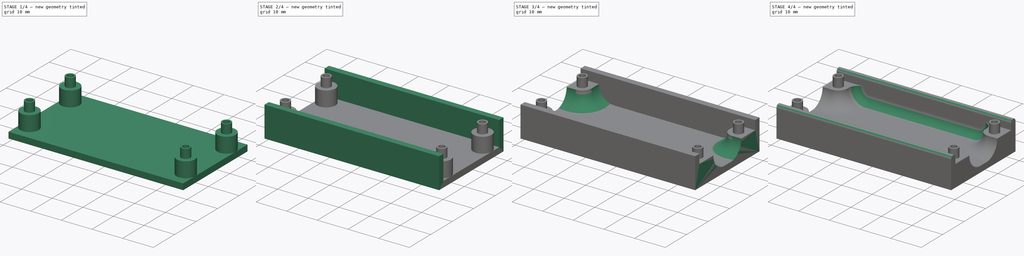
[diagram: build sequence overview — one tinted view per stage of 4, left to right]
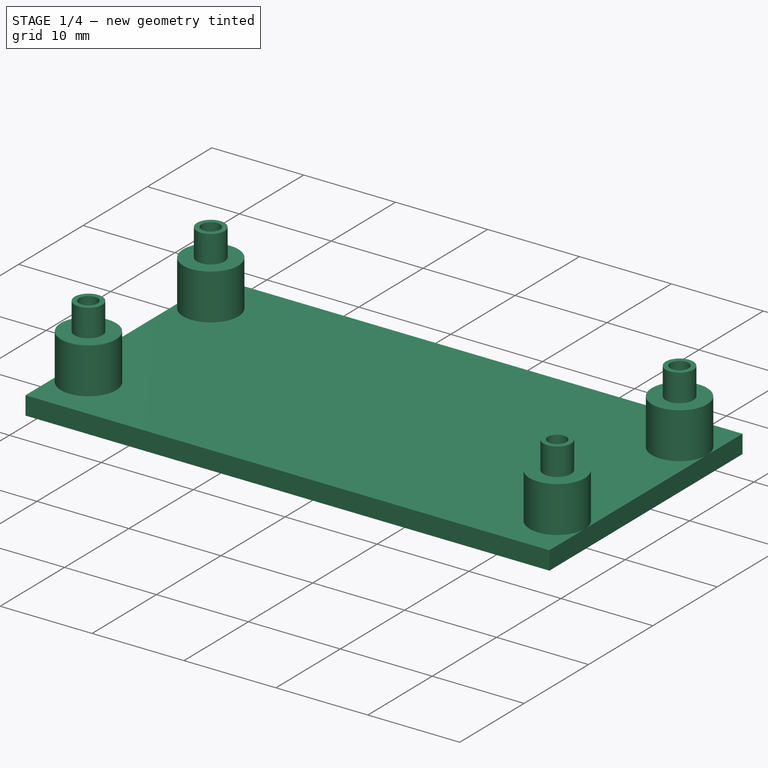
[diagram: stage 1 of 4 — iso view after this stage's code; geometry added in this stage tinted green]
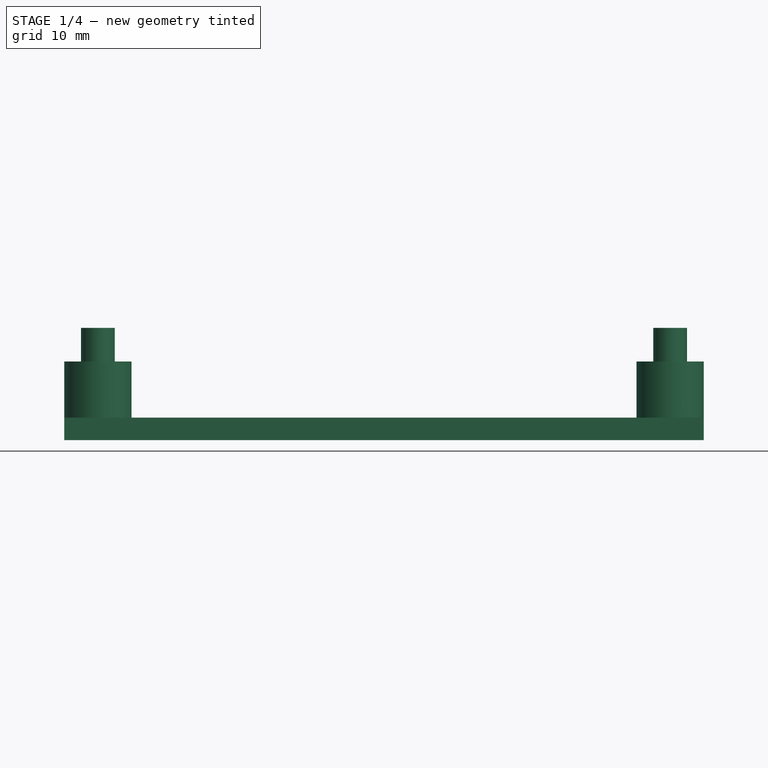
[diagram: stage 1 of 4 — front view after this stage's code; geometry added in this stage tinted green]
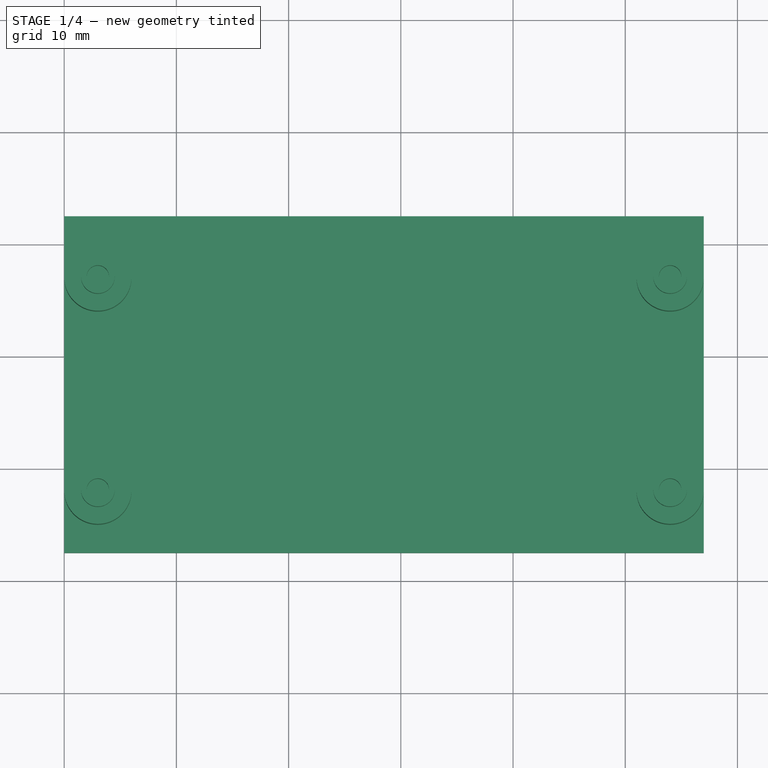
[diagram: stage 1 of 4 — top view after this stage's code; geometry added in this stage tinted green]
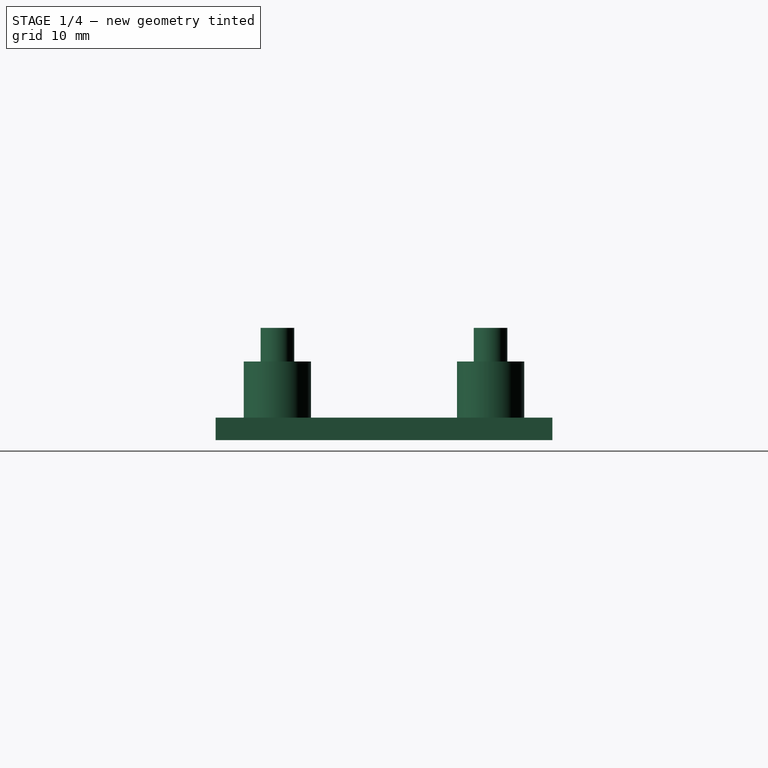
[diagram: stage 1 of 4 — right view after this stage's code; geometry added in this stage tinted green]
FCSTD DOCUMENT  (FreeCAD 1.0RUnknown)
Label: usbtin_bed
License: All rights reserved
LicenseURL: http://en.wikipedia.org/wiki/All_rights_reserved
objects: Sketcher::SketchObject×8, PartDesign::Pad×6, PartDesign::Plane×5, PartDesign::Line×5, PartDesign::Mirrored×3, PartDesign::Revolution×1, PartDesign::PolarPattern×1, PartDesign::Fillet×1, PartDesign::Pocket×1, PartDesign::Body×1
note: 62 computed .brp shape members not serialized (recipe doc carries the construction recipe); baked Part::Feature solids carry a one-line shape summary decoded from their .brp

FEATURE [Sketcher::SketchObject] Sketch  label="board footprint"
  ArcFitTolerance = 1e-06
  AttachmentSupport = -> [XY_Plane]
  FullyConstrained = true
  MakeInternals = false
  MapMode = 5
  sketch-geometry (8):
    g0: LineSegment StartX=0 StartY=0 StartZ=0 EndX=0 EndY=-25 EndZ=0
    g1: LineSegment StartX=0 StartY=-25 StartZ=0 EndX=57 EndY=-25 EndZ=0
    g2: LineSegment StartX=57 StartY=-25 StartZ=0 EndX=57 EndY=0 EndZ=0
    g3: LineSegment StartX=57 StartY=0 StartZ=0 EndX=0 EndY=0 EndZ=0
    g4: Circle CenterX=3 CenterY=-3 CenterZ=0 NormalX=0 NormalY=0 NormalZ=1 AngleXU=0 Radius=1.6
    g5: Circle CenterX=54 CenterY=-3 CenterZ=0 NormalX=0 NormalY=0 NormalZ=1 AngleXU=0 Radius=1.6
    g6: Circle CenterX=54 CenterY=-22 CenterZ=0 NormalX=0 NormalY=0 NormalZ=1 AngleXU=0 Radius=1.6
    g7: Circle CenterX=3 CenterY=-22 CenterZ=0 NormalX=0 NormalY=0 NormalZ=1 AngleXU=0 Radius=1.6
  constraints (23):
    c: Coincident(g0,g1)
    c: Coincident(g1,g2)
    c: Coincident(g2,g3)
    c: Coincident(g3,g0)
    c: Vertical(g0)
    c: Vertical(g2)
    c: Horizontal(g1)
    c: Horizontal(g3)
    c: Distance(g0,g2) = 57
    c: Distance(g1,g3) = 25
    c: Coincident(g0,g-1)
    c: Diameter(g4) = 3.2
    c: Diameter(g5) = 3.2
    c: Diameter(g6) = 3.2
    c: Diameter(g7) = 3.2
    c: DistanceY(g4) = -3
    c: DistanceX(g4) = 3
    c: DistanceY(g5,g2) = 3
    c: DistanceX(g5,g2) = 3
    c: DistanceY(g1,g6) = 3
    c: DistanceX(g6,g1) = 3
    c: DistanceY(g0,g7) = 3
    c: DistanceX(g0,g7) = 3
FEATURE [Sketcher::SketchObject] Sketch001
  ArcFitTolerance = 1e-06
  AttachmentSupport = -> [XY_Plane]
  ExternalGeometry = -> [Sketch]
  FullyConstrained = true
  MakeInternals = false
  MapMode = 5
  sketch-geometry (5):
    g0: LineSegment StartX=0 StartY=2.5 StartZ=0 EndX=0 EndY=-27.5 EndZ=0
    g1: LineSegment StartX=0 StartY=-27.5 StartZ=0 EndX=57 EndY=-27.5 EndZ=0
    g2: LineSegment StartX=57 StartY=-27.5 StartZ=0 EndX=57 EndY=2.5 EndZ=0
    g3: LineSegment StartX=57 StartY=2.5 StartZ=0 EndX=0 EndY=2.5 EndZ=0
    g4: GeomPoint [constr] X=0 Y=-12.5 Z=0
  constraints (12):
    c: Coincident(g0,g1)
    c: Coincident(g1,g2)
    c: Coincident(g2,g3)
    c: Coincident(g3,g0)
    c: Vertical(g0)
    c: Vertical(g2)
    c: Horizontal(g1)
    c: Horizontal(g3)
    c: Vertical(g2,g-4)
    c: DistanceY(g0) = 2.5
    c: Symmetric(g-1,g-3,g4)
    c: Symmetric(g0,g0,g4)
FEATURE [PartDesign::Pad] Pad  label="base"
  Direction = (0,0,1)
  Length = 2
  Length2 = 10
  Profile = -> Sketch001
  ReferenceAxis = -> Sketch001 [N_Axis]
  Refine = true
  Suppressed = false
  Type = 0
FEATURE [Sketcher::SketchObject] Sketch002
  ArcFitTolerance = 1e-06
  AttachmentSupport = -> [Pad]
  ExternalGeometry = -> [Sketch]
  FullyConstrained = true
  MakeInternals = false
  MapMode = 5
  Placement = pos=(0,0,2) rot=(0,0,1;0rad)
  sketch-geometry (4):
    g0: Circle CenterX=3 CenterY=-3 CenterZ=0 NormalX=0 NormalY=0 NormalZ=1 AngleXU=0 Radius=3
    g1: Circle CenterX=54 CenterY=-3 CenterZ=0 NormalX=0 NormalY=0 NormalZ=1 AngleXU=0 Radius=3
    g2: Circle CenterX=3 CenterY=-22 CenterZ=0 NormalX=0 NormalY=0 NormalZ=1 AngleXU=0 Radius=3
    g3: Circle CenterX=54 CenterY=-22 CenterZ=0 NormalX=0 NormalY=0 NormalZ=1 AngleXU=0 Radius=3
  constraints (8):
    c: Coincident(g0,g-3)
    c: Tangent(g0,g-1)
    c: Coincident(g1,g-4)
    c: Tangent(g1,g-1)
    c: Coincident(g2,g-6)
    c: Tangent(g2,g-7)
    c: Coincident(g3,g-5)
    c: Tangent(g3,g-7)
FEATURE [PartDesign::Pad] Pad001  label="standoffs"
  BaseFeature = -> Pad
  Direction = (0,0,1)
  Length = 5
  Length2 = 10
  Profile = -> Sketch002
  ReferenceAxis = -> Sketch002 [N_Axis]
  Refine = true
  Suppressed = false
  Type = 0
FEATURE [PartDesign::Plane] DatumPlane  label="board bottom"
  AttachmentSupport = -> [Pad001]
  Length = 95.1225
  MapMode = 5
  Placement = pos=(0,0,7) rot=(0,0,1;0rad)
  ResizeMode = 0
  Width = 65.6225
FEATURE [Sketcher::SketchObject] Sketch003
  ArcFitTolerance = 1e-06
  AttachmentSupport = -> [DatumPlane]
  ExternalGeometry = -> [Pad001]
  FullyConstrained = true
  MakeInternals = false
  MapMode = 5
  Placement = pos=(0,0,7) rot=(0,0,1;0rad)
  sketch-geometry (9):
    g0: Circle CenterX=3 CenterY=-3 CenterZ=0 NormalX=0 NormalY=0 NormalZ=1 AngleXU=0 Radius=1.5
    g1: Circle CenterX=54 CenterY=-3 CenterZ=0 NormalX=0 NormalY=0 NormalZ=1 AngleXU=0 Radius=1.5
    g2: Circle CenterX=54 CenterY=-22 CenterZ=0 NormalX=0 NormalY=0 NormalZ=1 AngleXU=0 Radius=1.5
    g3: Circle CenterX=3 CenterY=-22 CenterZ=0 NormalX=0 NormalY=0 NormalZ=1 AngleXU=0 Radius=1.5
    g4: Circle CenterX=3 CenterY=-3 CenterZ=0 NormalX=0 NormalY=0 NormalZ=1 AngleXU=0 Radius=1
    g5: LineSegment [constr] StartX=3 StartY=-2 StartZ=0 EndX=3 EndY=-1.5 EndZ=0
    g6: Circle CenterX=3 CenterY=-22 CenterZ=0 NormalX=0 NormalY=0 NormalZ=1 AngleXU=0 Radius=1
    g7: Circle CenterX=54 CenterY=-22 CenterZ=0 NormalX=0 NormalY=0 NormalZ=1 AngleXU=0 Radius=1
    g8: Circle CenterX=54 CenterY=-3 CenterZ=0 NormalX=0 NormalY=0 NormalZ=1 AngleXU=0 Radius=1
  constraints (20):
    c: Diameter(g0) = 3
    c: Coincident(g0,g-3)
    c: Coincident(g1,g-4)
    c: Coincident(g2,g-5)
    c: Coincident(g3,g-6)
    c: Equal(g0,g1)
    c: Equal(g1,g3)
    c: Equal(g3,g2)
    c: Coincident(g4,g0)
    c: PointOnObject(g5,g4)
    c: PointOnObject(g5,g0)
    c: Vertical(g5)
    c: Vertical(g5,g0)
    c: DistanceY(g5,g5) = 0.5
    c: Coincident(g6,g3)
    c: Coincident(g7,g2)
    c: Coincident(g8,g1)
    c: Equal(g4,g6)
    c: Equal(g6,g7)
    c: Equal(g7,g8)
FEATURE [PartDesign::Pad] Pad002  label="dowels"
  BaseFeature = -> Pad001
  Direction = (0,0,1)
  Length = 3
  Length2 = 10
  Profile = -> Sketch003
  ReferenceAxis = -> Sketch003 [N_Axis]
  Refine = true
  Suppressed = false
  Type = 0
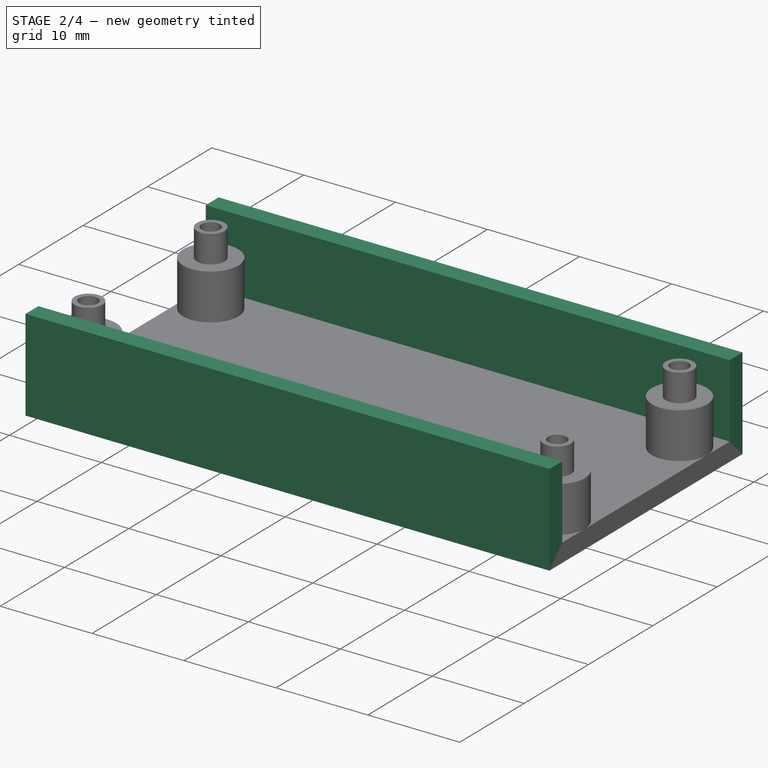
[diagram: stage 2 of 4 — iso view after this stage's code; geometry added in this stage tinted green]
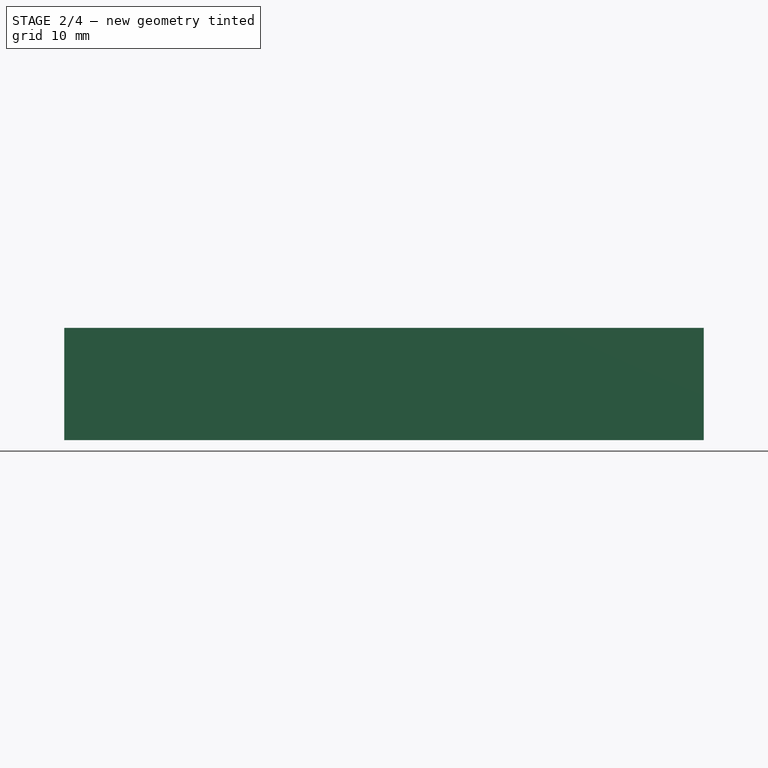
[diagram: stage 2 of 4 — front view after this stage's code; geometry added in this stage tinted green]
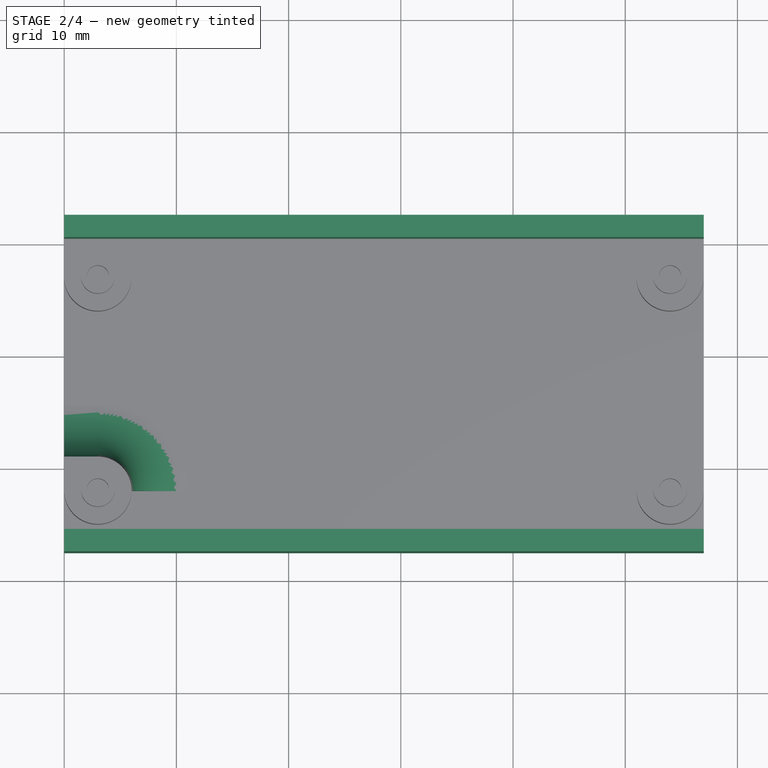
[diagram: stage 2 of 4 — top view after this stage's code; geometry added in this stage tinted green]
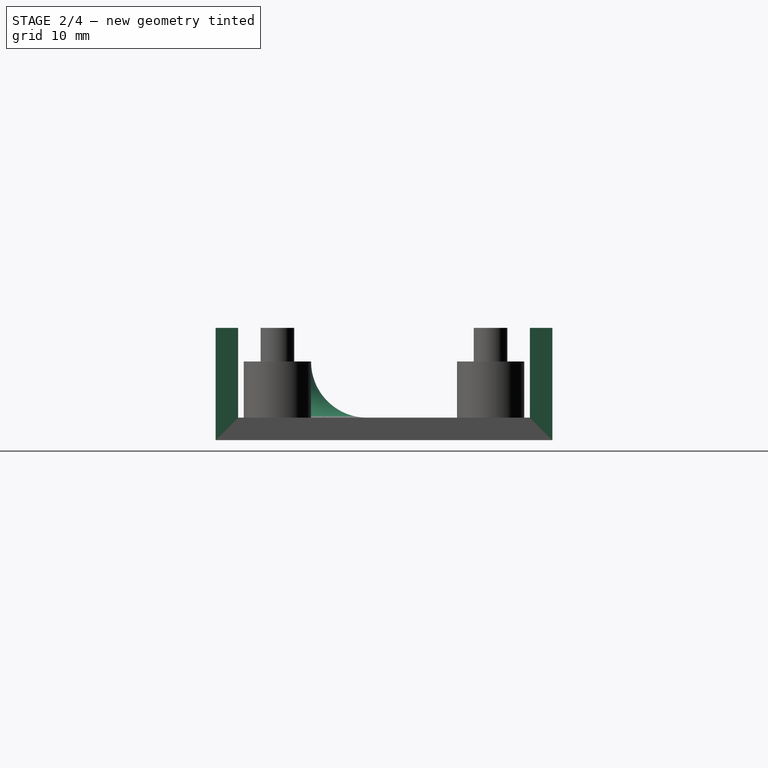
[diagram: stage 2 of 4 — right view after this stage's code; geometry added in this stage tinted green]
FEATURE [Sketcher::SketchObject] Sketch004
  ArcFitTolerance = 1e-06
  AttachmentSupport = -> [Pad002]
  ExternalGeometry = -> [Pad002,Sketch]
  FullyConstrained = true
  MakeInternals = false
  MapMode = 5
  Placement = pos=(0,0,2) rot=(0,0,1;0rad)
  sketch-geometry (9):
    g0: LineSegment StartX=0 StartY=2.5 StartZ=0 EndX=0 EndY=0.5 EndZ=0
    g1: LineSegment StartX=0 StartY=0.5 StartZ=0 EndX=57 EndY=0.5 EndZ=0
    g2: LineSegment StartX=57 StartY=0.5 StartZ=0 EndX=57 EndY=2.5 EndZ=0
    g3: LineSegment StartX=57 StartY=2.5 StartZ=0 EndX=0 EndY=2.5 EndZ=0
    g4: LineSegment StartX=0 StartY=-27.5 StartZ=0 EndX=57 EndY=-27.5 EndZ=0
    g5: LineSegment StartX=57 StartY=-27.5 StartZ=0 EndX=57 EndY=-25.5 EndZ=0
    g6: LineSegment StartX=57 StartY=-25.5 StartZ=0 EndX=0 EndY=-25.5 EndZ=0
    g7: LineSegment StartX=0 StartY=-25.5 StartZ=0 EndX=0 EndY=-27.5 EndZ=0
    g8: GeomPoint [constr] X=0 Y=-12.5 Z=0
  constraints (20):
    c: Coincident(g0,g1)
    c: Coincident(g1,g2)
    c: Coincident(g2,g3)
    c: Coincident(g3,g0)
    c: Vertical(g0)
    c: Vertical(g2)
    c: Horizontal(g1)
    c: Coincident(g0,g-3)
    c: Coincident(g4,g5)
    c: Coincident(g5,g6)
    c: Coincident(g6,g7)
    c: Coincident(g7,g4)
    c: Horizontal(g6)
    c: Vertical(g5)
    c: Coincident(g4,g-4)
    c: Coincident(g2,g-3)
    c: Coincident(g4,g-4)
    c: DistanceY(g0) = 0.5
    c: Symmetric(g-5,g-1,g8)
    c: Symmetric(g6,g0,g8)
FEATURE [PartDesign::Pad] Pad003  label="walls"
  BaseFeature = -> Pad002
  Direction = (0,0,1)
  Length = 10
  Length2 = 10
  Profile = -> Sketch004
  ReferenceAxis = -> Sketch004 [N_Axis]
  Refine = true
  Suppressed = false
  Type = 3
  UpToFace = -> Pad002 [Face19]
FEATURE [PartDesign::Line] DatumLine  label="hole 1"
  AttacherType = Attacher::AttachEngineLine
  AttachmentSupport = -> [Pad003]
  Length = 20
  MapMode = 19
  Placement = pos=(3,-3,10) rot=(0,0,1;0rad)
  ResizeMode = 0
FEATURE [PartDesign::Line] DatumLine001  label="hole 3"
  AttacherType = Attacher::AttachEngineLine
  AttachmentSupport = -> [Pad003]
  Length = 20
  MapMode = 19
  Placement = pos=(3,-22,10) rot=(0,0,1;0rad)
  ResizeMode = 0
FEATURE [PartDesign::Plane] DatumPlane001  label="hole 1-3"
  AttachmentSupport = -> [DatumLine,DatumLine001]
  Length = 62.747
  MapMode = 13
  Placement = pos=(3,-9.33333,10.3333) rot=(0.57735,0.57735,0.57735;2.0944rad)
  ResizeMode = 0
  Width = 60.247
FEATURE [Sketcher::SketchObject] Sketch005
  ArcFitTolerance = 1e-06
  AttachmentSupport = -> [DatumPlane001]
  ExternalGeometry = -> [Pad003,DatumLine001]
  FullyConstrained = true
  MakeInternals = false
  MapMode = 5
  Placement = pos=(3,-9.33333,10.3333) rot=(0.57735,0.57735,0.57735;2.0944rad)
  sketch-geometry (4):
    g0: ArcOfCircle CenterX=-4.66667 CenterY=-3.33333 CenterZ=0 NormalX=0 NormalY=0 NormalZ=1 AngleXU=0 Radius=5 StartAngle=3.14159 EndAngle=4.71239
    g1: LineSegment StartX=-9.66667 StartY=-3.33333 StartZ=0 EndX=-12.6667 EndY=-3.33333 EndZ=0
    g2: LineSegment StartX=-12.6667 StartY=-3.33333 StartZ=0 EndX=-12.6667 EndY=-8.33333 EndZ=0
    g3: LineSegment StartX=-12.6667 StartY=-8.33333 StartZ=0 EndX=-4.66667 EndY=-8.33333 EndZ=0
  constraints (9):
    c: Coincident(g0,g-3)
    c: Tangent(g0,g-4) = -1.5708
    c: Coincident(g1,g0)
    c: PointOnObject(g1,g-6)
    c: Horizontal(g1)
    c: Coincident(g2,g1)
    c: Coincident(g2,g-4)
    c: Coincident(g3,g2)
    c: Tangent(g3,g0) = -1.5708
FEATURE [PartDesign::Pad] Pad004
  BaseFeature = -> Pad003
  Direction = (1,0,0)
  Length = 10
  Length2 = 10
  Midplane = true
  Profile = -> Sketch005
  ReferenceAxis = -> Sketch005 [N_Axis]
  Refine = true
  Suppressed = false
  Type = 3
  UpToFace = -> Pad003 [Face2]
FEATURE [PartDesign::Revolution] Revolution
  Angle = 90
  Angle2 = 60
  Axis = (0,0,1)
  Base = (3,-22,10)
  BaseFeature = -> Pad004
  Profile = -> Sketch005
  ReferenceAxis = -> DatumLine001
  Refine = true
  Reversed = true
  Suppressed = false
  Type = 0
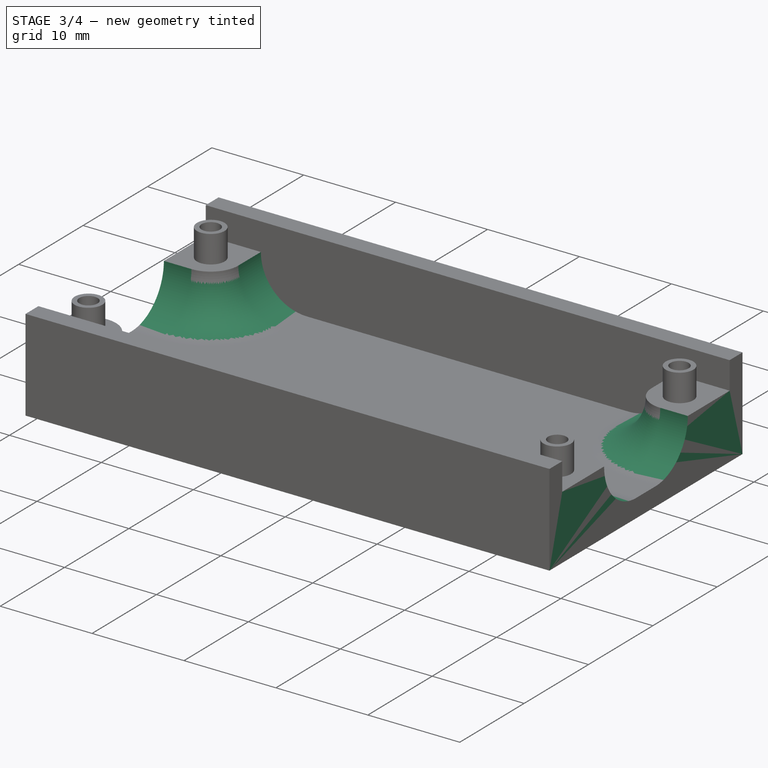
[diagram: stage 3 of 4 — iso view after this stage's code; geometry added in this stage tinted green]
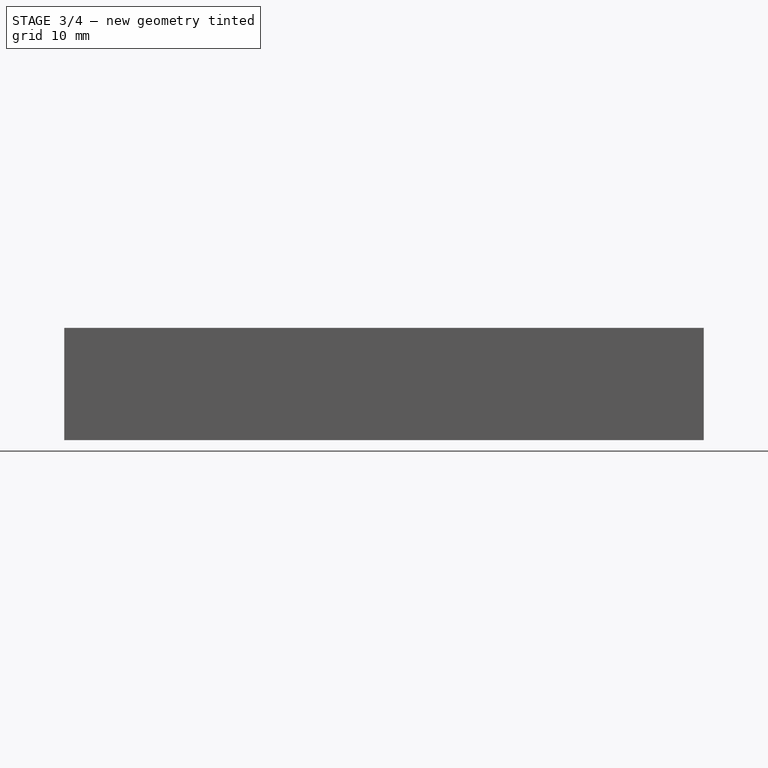
[diagram: stage 3 of 4 — front view after this stage's code; geometry added in this stage tinted green]
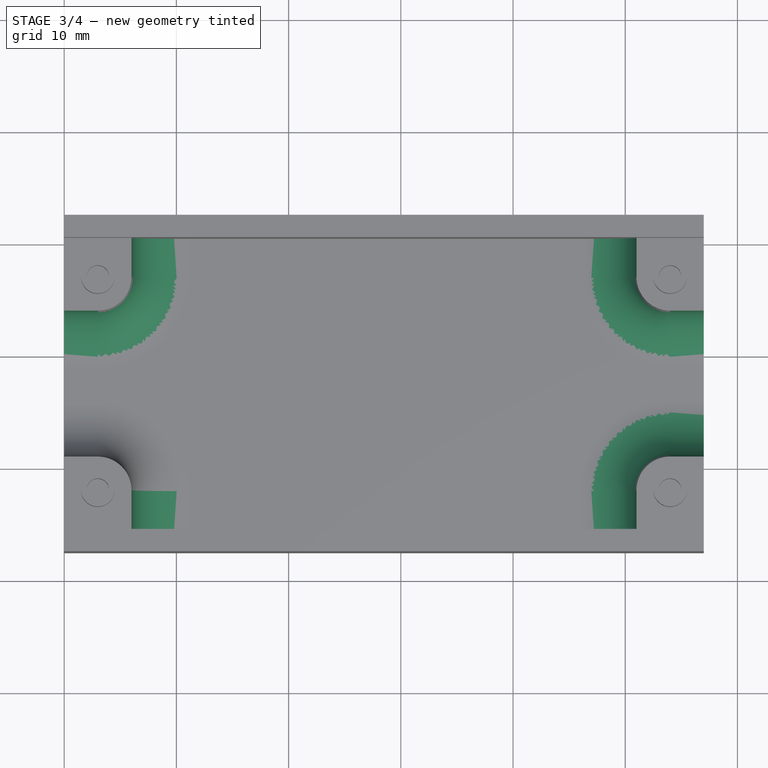
[diagram: stage 3 of 4 — top view after this stage's code; geometry added in this stage tinted green]
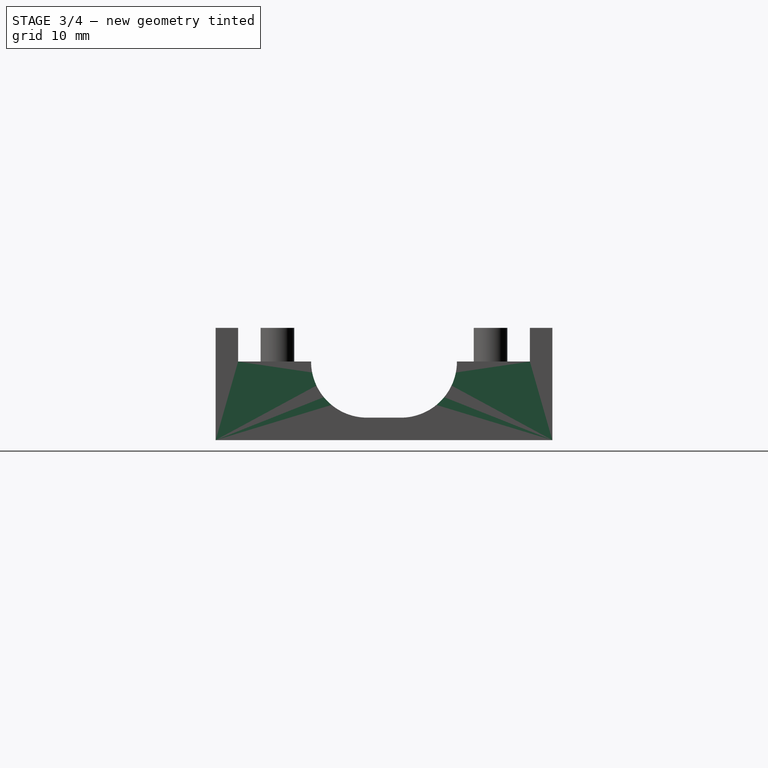
[diagram: stage 3 of 4 — right view after this stage's code; geometry added in this stage tinted green]
FEATURE [Sketcher::SketchObject] Sketch006
  ArcFitTolerance = 1e-06
  AttachmentSupport = -> [Revolution]
  ExternalGeometry = -> [Revolution]
  FullyConstrained = true
  MakeInternals = false
  MapMode = 5
  Placement = pos=(2.4e-15,-22,-4e-16) rot=(1,0,0;1.5708rad)
  sketch-geometry (4):
    g0: LineSegment StartX=6 StartY=7 StartZ=0 EndX=0 EndY=7 EndZ=0
    g1: LineSegment StartX=0 StartY=7 StartZ=0 EndX=0 EndY=2 EndZ=0
    g2: LineSegment StartX=0 StartY=2 StartZ=0 EndX=11 EndY=2 EndZ=0
    g3: ArcOfCircle CenterX=11 CenterY=7 CenterZ=0 NormalX=0 NormalY=0 NormalZ=1 AngleXU=0 Radius=5 StartAngle=3.14159 EndAngle=4.71239
  constraints (10):
    c: Coincident(g0,g-5)
    c: Coincident(g1,g0)
    c: Vertical(g1)
    c: Coincident(g2,g1)
    c: Horizontal(g2)
    c: Horizontal(g0)
    c: PointOnObject(g0,g-2)
    c: Coincident(g3,g0)
    c: Coincident(g2,g-5)
    c: Tangent(g3,g2) = -1.5708
FEATURE [PartDesign::Pad] Pad005
  BaseFeature = -> Revolution
  Direction = (0,-1,2e-16)
  Length = 10
  Length2 = 10
  Profile = -> Sketch006
  ReferenceAxis = -> Sketch006 [N_Axis]
  Refine = true
  Suppressed = false
  Type = 3
  UpToFace = -> Revolution [Face6]
FEATURE [PartDesign::Line] DatumLine002  label="hole 2"
  AttacherType = Attacher::AttachEngineLine
  AttachmentSupport = -> [Pad005]
  Length = 20
  MapMode = 19
  Placement = pos=(54,-3,10) rot=(0,0,1;0rad)
  ResizeMode = 0
FEATURE [PartDesign::Line] DatumLine003  label="hole 4"
  AttacherType = Attacher::AttachEngineLine
  AttachmentSupport = -> [Pad005]
  Length = 20
  MapMode = 19
  Placement = pos=(54,-22,10) rot=(0,0,1;0rad)
  ResizeMode = 0
FEATURE [PartDesign::Plane] DatumPlane002  label="hole 2-4"
  AttachmentSupport = -> [DatumLine002,DatumLine003]
  Length = 62.747
  MapMode = 13
  Placement = pos=(54,-9.33333,10.3333) rot=(0.57735,0.57735,0.57735;2.0944rad)
  ResizeMode = 0
  Width = 60.247
FEATURE [PartDesign::Line] DatumLine004  label="inertia Z"
  AttacherType = Attacher::AttachEngineLine
  AttachmentSupport = -> [Pad005]
  Length = 20
  MapMode = 42
  Placement = pos=(28.5,-12.5,0) rot=(0,0,1;0rad)
  ResizeMode = 0
FEATURE [PartDesign::Plane] DatumPlane003  label="interia XZ"
  AttachmentSupport = -> [DatumLine004]
  Length = 94.8062
  MapMode = 3
  Placement = pos=(28.5,-12.5,0) rot=(1,0,0;1.5708rad)
  ResizeMode = 0
  Width = 62.8062
FEATURE [PartDesign::Plane] DatumPlane004  label="inertia YZ"
  AttachmentSupport = -> [DatumLine004]
  Length = 62.747
  MapMode = 4
  Placement = pos=(28.5,-12.5,0) rot=(0.57735,0.57735,0.57735;2.0944rad)
  ResizeMode = 0
  Width = 60.247
FEATURE [PartDesign::Mirrored] Mirrored
  BaseFeature = -> Pad005
  MirrorPlane = -> DatumPlane003
  Originals = -> [Pad004,Revolution,Pad005]
  Refine = true
  Suppressed = false
  TransformMode = 0
FEATURE [PartDesign::Mirrored] Mirrored001
  BaseFeature = -> Mirrored
  MirrorPlane = -> DatumPlane004
  Originals = -> [Pad004,Revolution,Pad005]
  Refine = true
  Suppressed = false
  TransformMode = 0
FEATURE [PartDesign::PolarPattern] PolarPattern
  Angle = 180
  Axis = -> DatumLine004
  BaseFeature = -> Mirrored001
  Mode = 0
  Occurrences = 2
  Offset = 120
  Originals = -> [Pad004,Revolution,Pad005]
  Refine = true
  Suppressed = false
  TransformMode = 0
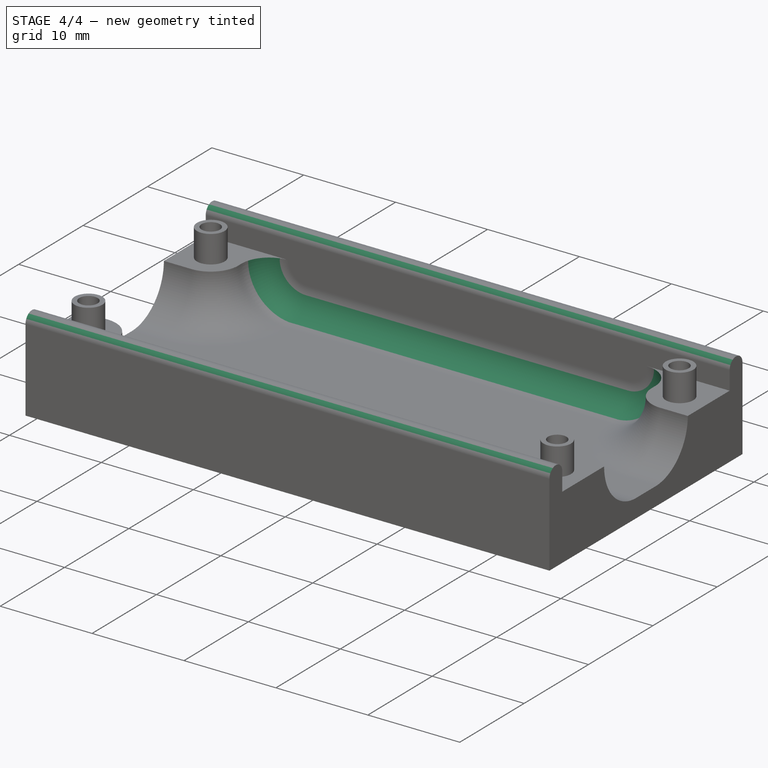
[diagram: stage 4 of 4 — iso view after this stage's code; geometry added in this stage tinted green]
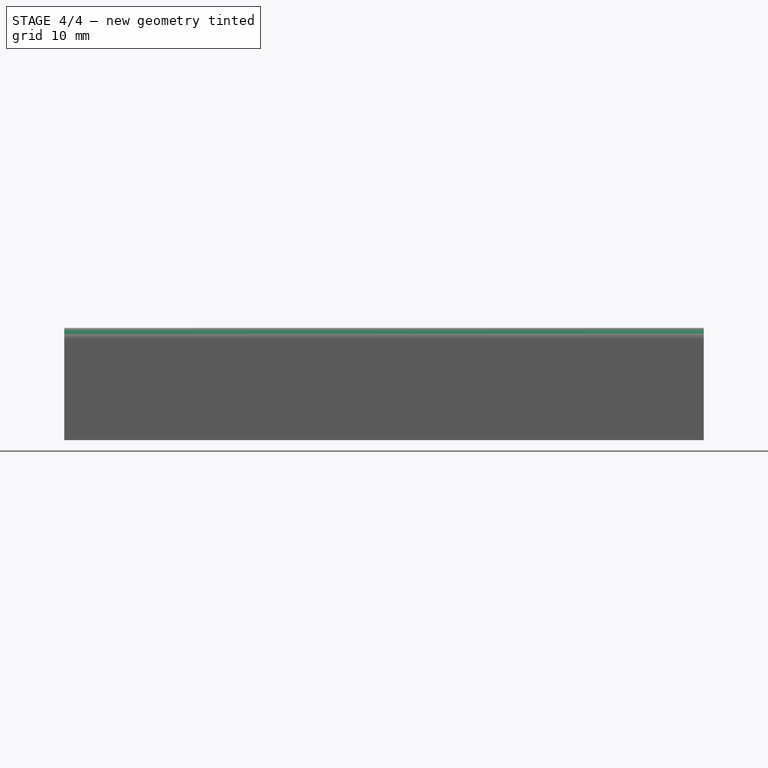
[diagram: stage 4 of 4 — front view after this stage's code; geometry added in this stage tinted green]
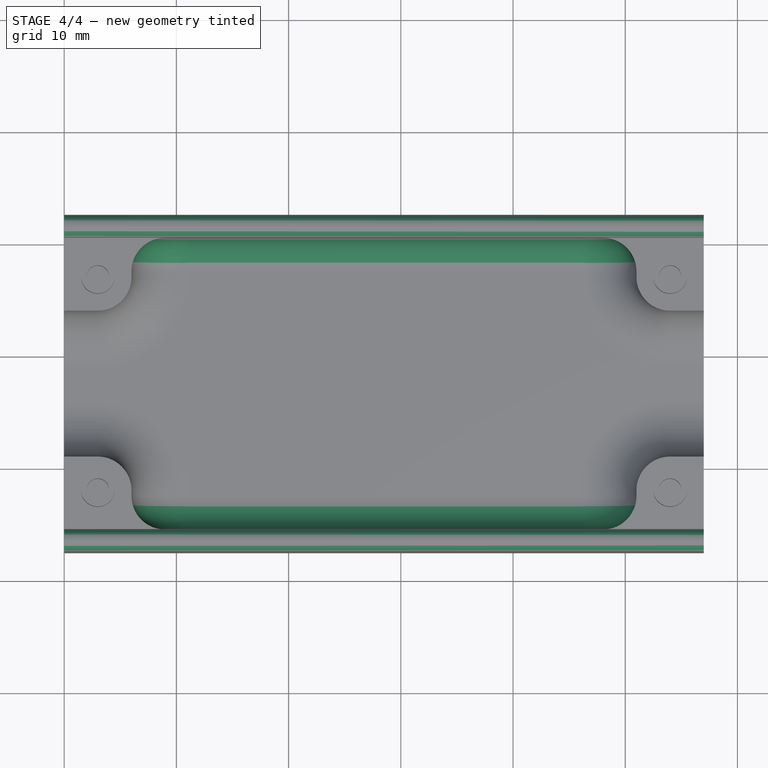
[diagram: stage 4 of 4 — top view after this stage's code; geometry added in this stage tinted green]
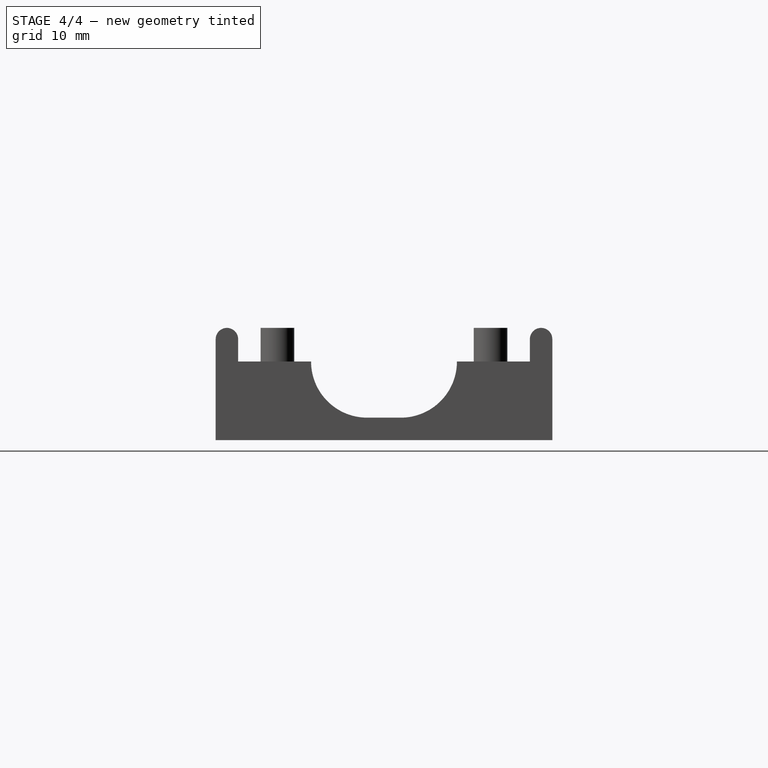
[diagram: stage 4 of 4 — right view after this stage's code; geometry added in this stage tinted green]
FEATURE [PartDesign::Fillet] Fillet  label="wall inner edge fillet"
  Base = -> PolarPattern [Edge19,Edge12]
  BaseFeature = -> PolarPattern
  Radius = 3
  Refine = true
  SupportTransform = false
  Suppressed = false
  UseAllEdges = false
FEATURE [Sketcher::SketchObject] Sketch007
  ArcFitTolerance = 1e-06
  AttachmentSupport = -> [Fillet]
  ExternalGeometry = -> [Fillet]
  FullyConstrained = true
  MakeInternals = false
  MapMode = 5
  Placement = pos=(1e-16,0,0) rot=(0.57735,-0.57735,-0.57735;2.0944rad)
  sketch-geometry (4):
    g0: ArcOfCircle CenterX=-1.5 CenterY=9 CenterZ=0 NormalX=0 NormalY=0 NormalZ=1 AngleXU=0 Radius=1 StartAngle=-6.31e-14 EndAngle=3.14159
    g1: LineSegment StartX=-2.5 StartY=9 StartZ=0 EndX=-2.5 EndY=10 EndZ=0
    g2: LineSegment StartX=-2.5 StartY=10 StartZ=0 EndX=-0.5 EndY=10 EndZ=0
    g3: LineSegment StartX=-0.5 StartY=10 StartZ=0 EndX=-0.5 EndY=9 EndZ=0
  constraints (11):
    c: PointOnObject(g0,g-3)
    c: Horizontal(g0,g0)
    c: Tangent(g0,g-4)
    c: Tangent(g0,g-5) = -1.5708
    c: Coincident(g1,g0)
    c: Coincident(g2,g1)
    c: Coincident(g3,g2)
    c: Coincident(g3,g0)
    c: Horizontal(g2)
    c: Vertical(g1)
    c: Coincident(g2,g-5)
FEATURE [PartDesign::Pocket] Pocket  label="wall top fillet 1"
  BaseFeature = -> Fillet
  Direction = (1,0,0)
  Length = 5
  Length2 = 5
  Profile = -> Sketch007
  ReferenceAxis = -> Sketch007 [N_Axis]
  Refine = true
  Suppressed = false
  Type = 1
FEATURE [PartDesign::Mirrored] Mirrored002  label="wall top fillet 2"
  BaseFeature = -> Pocket
  MirrorPlane = -> DatumPlane003
  Originals = -> [Pocket]
  Refine = true
  Suppressed = false
  TransformMode = 0
FEATURE [PartDesign::Body] Body
  AllowCompound = false
  Group = -> [Sketch,Sketch001,Pad,Sketch002,Pad001,DatumPlane,Sketch003,Pad002,Sketch004,Pad003,DatumLine,DatumLine001,DatumPlane001,Sketch005,Pad004,Revolution,Sketch006,Pad005,DatumLine002,DatumLine003,DatumPlane002,DatumLine004,DatumPlane003,DatumPlane004,Mirrored,Mirrored001,PolarPattern,Fillet,Sketch007,Pocket,Mirrored002]
  Origin = -> Origin
  Tip = -> Mirrored002
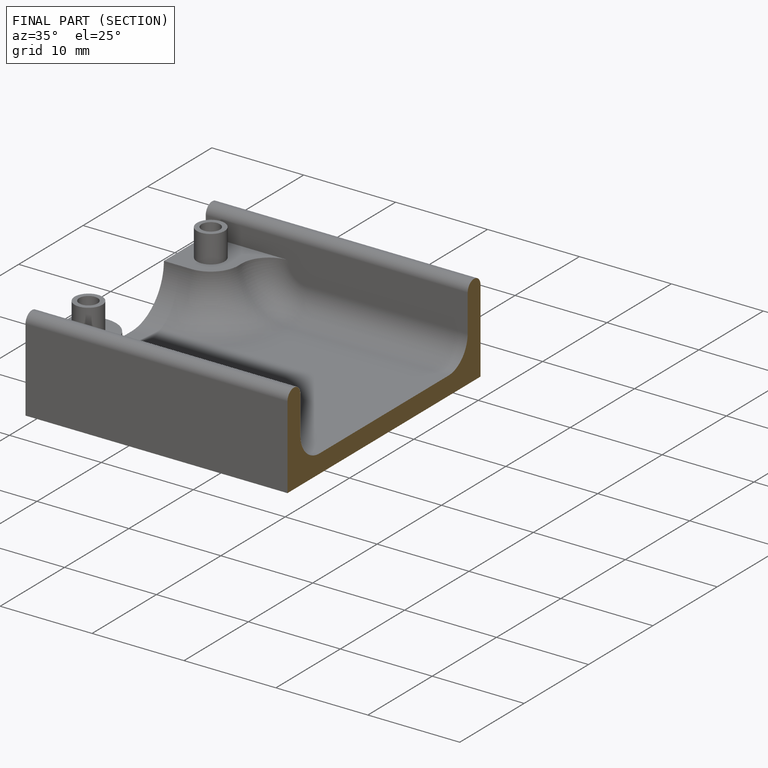
[diagram: finished part — half-section view (interior)]
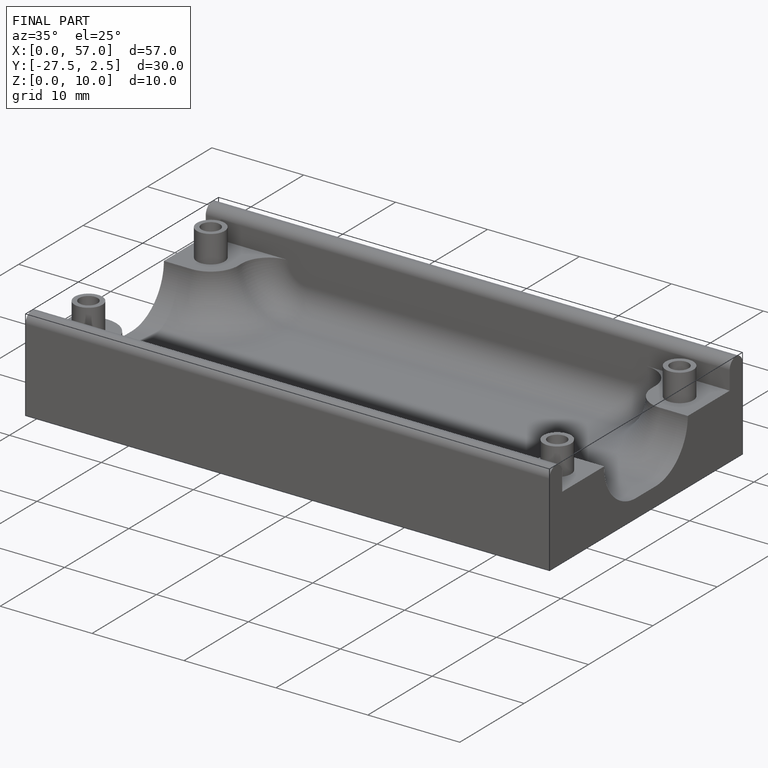
[diagram: finished part — iso view with bounding-box wireframe]
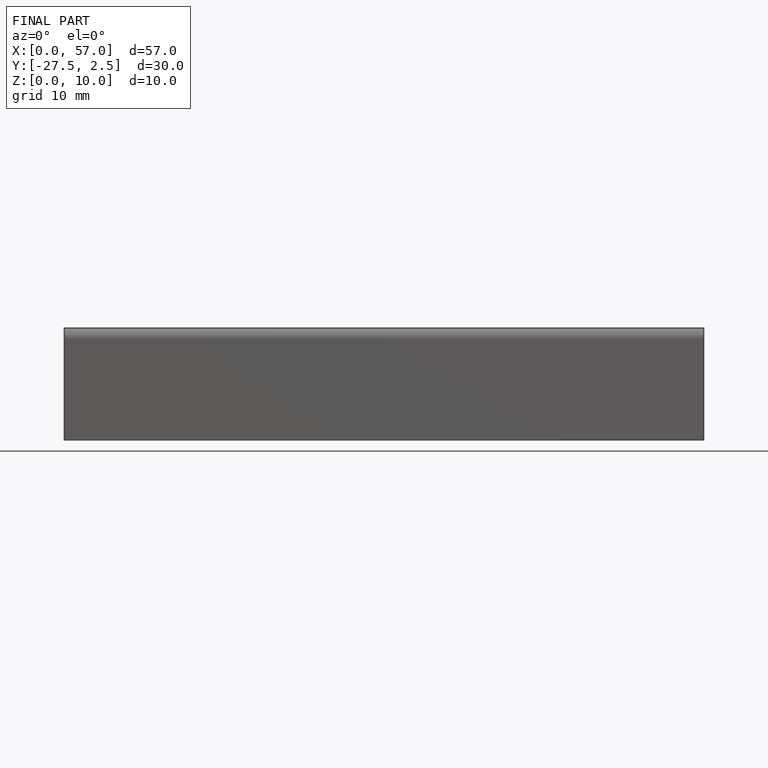
[diagram: finished part — front view with bounding-box wireframe]
